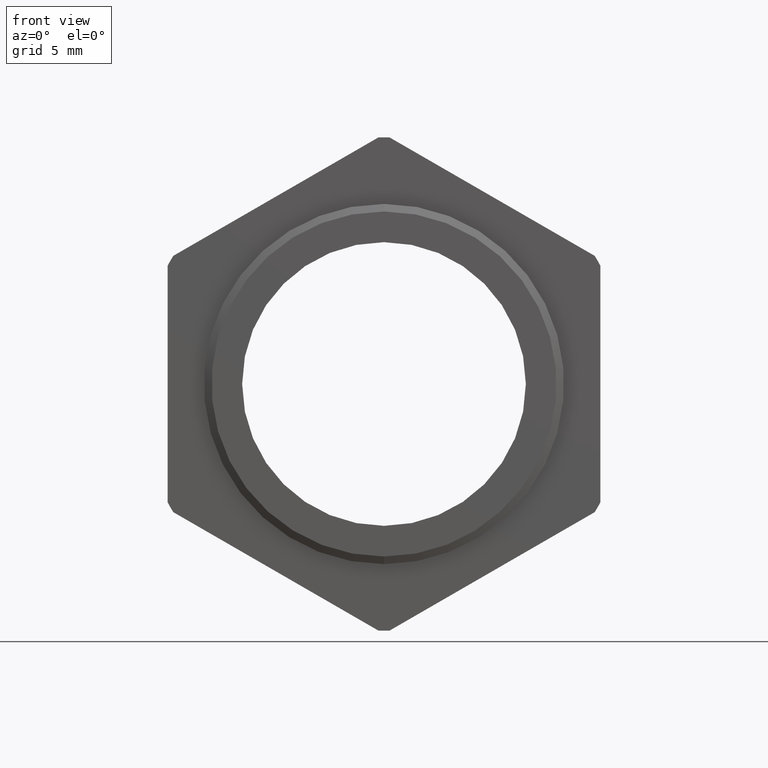
[diagram: clean part render]
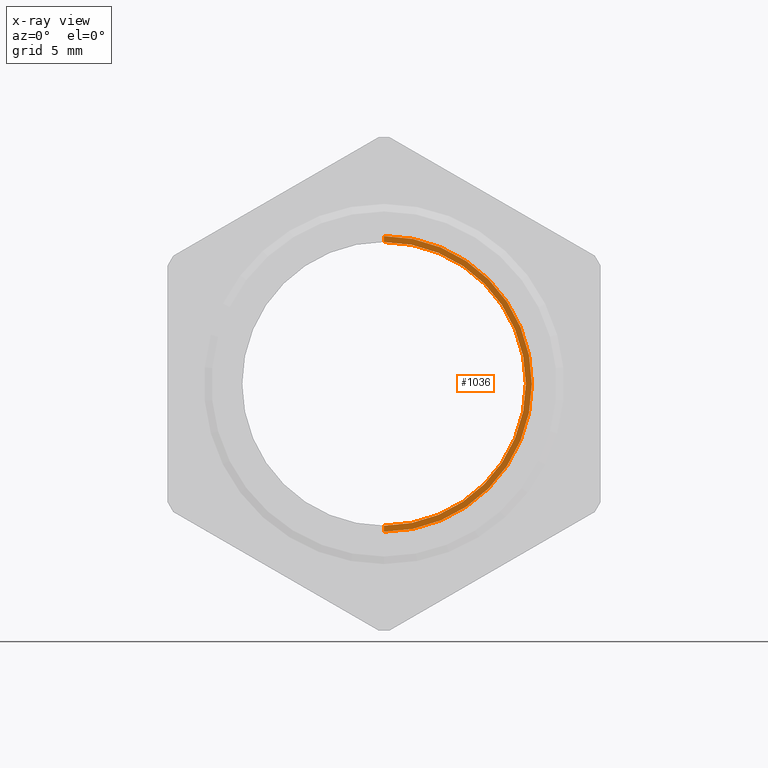
[diagram: x-ray — body ghosted, one internal face saturated and labeled with its STEP entity id]
A machine part, front view, then the same camera in x-ray: the body is ghosted and one INTERNAL B-rep face — a face not visible from any outside direction — is saturated and labeled: STEP entity #1036.
In plain terms, the highlighted conical surface has half-angle 88.312 deg.
Its self-contained STEP definition (entity closure, byte-faithful):
#1036 = ADVANCED_FACE ( 'NONE', ( #3127 ), #3125, .F. ) ;
#1037 = EDGE_LOOP ( 'NONE', ( #1038, #1039, #1040, #1041 ) ) ;
#1038 = ORIENTED_EDGE ( 'NONE', *, *, #5565, .F. ) ;
#1039 = ORIENTED_EDGE ( 'NONE', *, *, #2558, .T. ) ;
#1040 = ORIENTED_EDGE ( 'NONE', *, *, #5609, .T. ) ;
#1041 = ORIENTED_EDGE ( 'NONE', *, *, #1042, .F. ) ;
#1042 = EDGE_CURVE ( 'NONE', #5598, #5568, #3121, .T. ) ;
#2558 = EDGE_CURVE ( 'NONE', #5562, #5560, #3396, .T. ) ;
#3117 = DIRECTION ( 'NONE',  ( 0.0000000000000000000, 0.0000000000000000000, 1.000000000000000000 ) ) ;
#3118 = DIRECTION ( 'NONE',  ( -0.0000000000000000000, 1.000000000000000000, -0.0000000000000000000 ) ) ;
#3119 = CARTESIAN_POINT ( 'NONE',  ( 0.0000000000000000000, 0.3738999999999996800, 0.0000000000000000000 ) ) ;
#3120 = AXIS2_PLACEMENT_3D ( 'NONE', #3119, #3118, #3117 ) ;
#3121 = CIRCLE ( 'NONE', #3120, 0.2699131668257122000 ) ;
#3122 = DIRECTION ( 'NONE',  ( 0.0000000000000000000, 0.0000000000000000000, -1.000000000000000000 ) ) ;
#3123 = DIRECTION ( 'NONE',  ( 0.0000000000000000000, -1.000000000000000000, 0.0000000000000000000 ) ) ;
#3124 = AXIS2_PLACEMENT_3D ( 'NONE', #3126, #3123, #3122 ) ;
#3125 = CONICAL_SURFACE ( 'NONE', #3124, 0.2393976470508425700, 1.541334666264296200 ) ;
#3126 = CARTESIAN_POINT ( 'NONE',  ( 0.0000000000000000000, 0.3747992980933291300, 0.0000000000000000000 ) ) ;
#3127 = FACE_OUTER_BOUND ( 'NONE', #1037, .T. ) ;
#3388 = DIRECTION ( 'NONE',  ( 0.0000000000000000000, 0.0000000000000000000, -1.000000000000000000 ) ) ;
#3389 = DIRECTION ( 'NONE',  ( -0.0000000000000000000, 1.000000000000000000, -0.0000000000000000000 ) ) ;
#3390 = CARTESIAN_POINT ( 'NONE',  ( 0.0000000000000000000, 0.3742219653570459900, 0.0000000000000000000 ) ) ;
#3391 = AXIS2_PLACEMENT_3D ( 'NONE', #3390, #3389, #3388 ) ;
#3396 = CIRCLE ( 'NONE', #3391, 0.2589880461203001900 ) ;
#3477 = DIRECTION ( 'NONE',  ( 1.224115347344792500E-016, -0.02945739864719126200, 0.9995660366703845700 ) ) ;
#3478 = VECTOR ( 'NONE', #3477, 39.37007874015747400 ) ;
#3479 = CARTESIAN_POINT ( 'NONE',  ( 2.931775621842221100E-017, 0.3747992980933291300, 0.2393976470508425700 ) ) ;
#3480 = LINE ( 'NONE', #3479, #3478 ) ;
#3486 = CARTESIAN_POINT ( 'NONE',  ( 3.171688816986526800E-017, 0.3742219653570459900, 0.2589880461203001900 ) ) ;
#3487 = CARTESIAN_POINT ( 'NONE',  ( 0.0000000000000000000, 0.3742219653570459900, -0.2589880461203001900 ) ) ;
#3535 = CARTESIAN_POINT ( 'NONE',  ( 0.0000000000000000000, 0.3738999999999996800, -0.2699131668257122600 ) ) ;
#3570 = DIRECTION ( 'NONE',  ( 0.0000000000000000000, -0.02945739864719126200, -0.9995660366703845700 ) ) ;
#3571 = VECTOR ( 'NONE', #3570, 39.37007874015747400 ) ;
#3572 = CARTESIAN_POINT ( 'NONE',  ( 0.0000000000000000000, 0.3747992980933291300, -0.2393976470508425700 ) ) ;
#3573 = LINE ( 'NONE', #3572, #3571 ) ;
#3593 = CARTESIAN_POINT ( 'NONE',  ( 3.305482958008340700E-017, 0.3738999999999996800, 0.2699131668257122600 ) ) ;
#5560 = VERTEX_POINT ( 'NONE', #3487 ) ;
#5562 = VERTEX_POINT ( 'NONE', #3486 ) ;
#5565 = EDGE_CURVE ( 'NONE', #5562, #5598, #3480, .T. ) ;
#5568 = VERTEX_POINT ( 'NONE', #3535 ) ;
#5598 = VERTEX_POINT ( 'NONE', #3593 ) ;
#5609 = EDGE_CURVE ( 'NONE', #5560, #5568, #3573, .T. ) ;